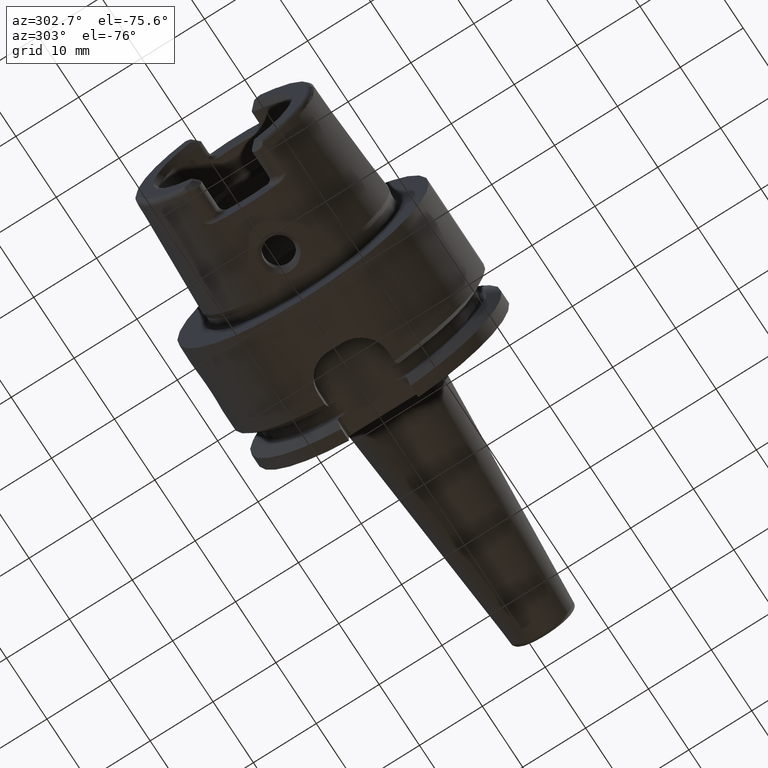
[diagram: clean part render]
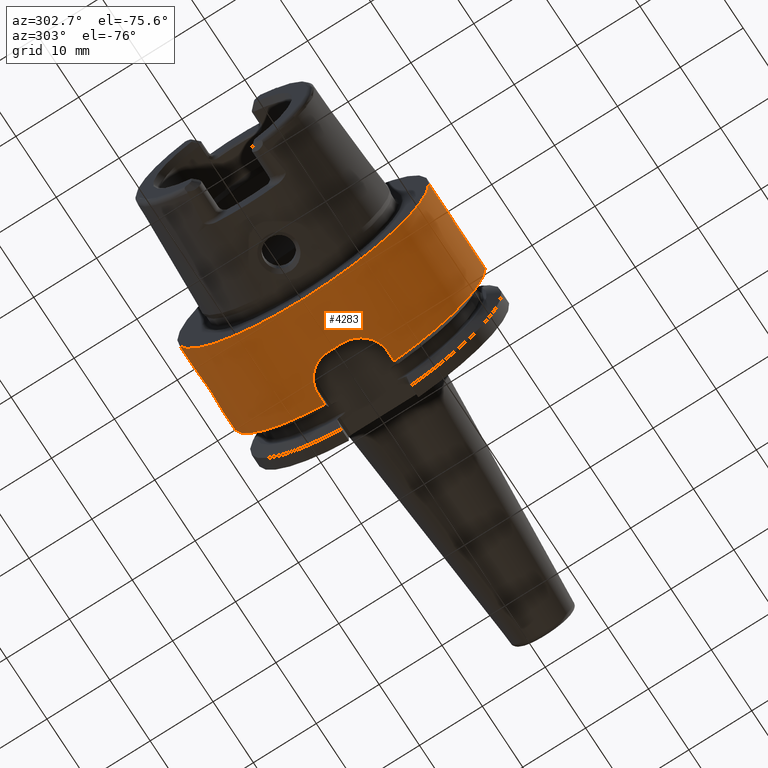
[diagram: same view with one face highlighted and labeled with its STEP entity id]
A machine part, auxiliary view. The second image highlights one B-rep face of the part: STEP entity #4283.
In plain terms, the highlighted cylindrical surface (partial cylindrical patch) has radius 20 mm, axis along (1, 0, 0).
Its self-contained STEP definition (entity closure, byte-faithful):
#853=CARTESIAN_POINT('',(-1.065814103640E-14,0.E0,0.E0));
#854=DIRECTION('',(-1.E0,0.E0,0.E0));
#855=DIRECTION('',(0.E0,1.E0,0.E0));
#856=AXIS2_PLACEMENT_3D('',#853,#854,#855);
#868=CARTESIAN_POINT('',(1.2E1,2.E1,0.E0));
#975=CARTESIAN_POINT('',(2.E0,2.E1,0.E0));
#1039=CARTESIAN_POINT('',(7.E0,1.936491673104E1,-5.E0));
#1040=CARTESIAN_POINT('',(7.277269205720E0,1.936491673104E1,-5.E0));
#1041=CARTESIAN_POINT('',(7.817065062970E0,1.937682316948E1,-4.954174733782E0));
#1042=CARTESIAN_POINT('',(8.583101313273E0,1.942478940204E1,-4.764319170226E0));
#1043=CARTESIAN_POINT('',(9.303947795154E0,1.949746008253E1,-4.460164029726E0));
#1044=CARTESIAN_POINT('',(9.964543066702E0,1.958721708415E1,-4.051503127372E0));
#1045=CARTESIAN_POINT('',(1.056239562523E1,1.968731976873E1,-3.537987227676E0));
#1046=CARTESIAN_POINT('',(1.107349740424E1,1.978701078087E1,-2.935069864087E0));
#1047=CARTESIAN_POINT('',(1.148330640224E1,1.987613861185E1,-2.259675346177E0));
#1048=CARTESIAN_POINT('',(1.178037844883E1,1.994579806335E1,-1.533678372167E0));
#1049=CARTESIAN_POINT('',(1.196005250753E1,1.998995644002E1,
-7.733833777005E-1));
#1050=CARTESIAN_POINT('',(1.2E1,2.E1,-2.596655130622E-1));
#1051=CARTESIAN_POINT('',(1.2E1,2.E1,0.E0));
#1053=CARTESIAN_POINT('',(2.E0,2.E1,0.E0));
#1054=CARTESIAN_POINT('',(2.E0,2.E1,-2.596442736296E-1));
#1055=CARTESIAN_POINT('',(2.039938460865E0,1.998995868639E1,
-7.733487736613E-1));
#1056=CARTESIAN_POINT('',(2.219644608543E0,1.994579231530E1,-1.533776588829E0));
#1057=CARTESIAN_POINT('',(2.516784929283E0,1.987611769093E1,-2.259860863195E0));
#1058=CARTESIAN_POINT('',(2.926599492818E0,1.978699119353E1,-2.935191913340E0));
#1059=CARTESIAN_POINT('',(3.437550815287E0,1.968733182713E1,-3.537903826514E0));
#1060=CARTESIAN_POINT('',(4.034954836188E0,1.958730007145E1,-4.051090857274E0));
#1061=CARTESIAN_POINT('',(4.695054124363E0,1.949757757763E1,-4.459655379746E0));
#1062=CARTESIAN_POINT('',(5.416287811861E0,1.942483710209E1,-4.764129424464E0));
#1063=CARTESIAN_POINT('',(6.182230863981E0,1.937685113542E1,-4.954065552338E0));
#1064=CARTESIAN_POINT('',(6.722458781987E0,1.936491673104E1,-5.E0));
#1065=CARTESIAN_POINT('',(7.E0,1.936491673104E1,-5.E0));
#1067=DIRECTION('',(-1.E0,0.E0,0.E0));
#1068=VECTOR('',#1067,2.E0);
#1069=CARTESIAN_POINT('',(2.E0,2.E1,0.E0));
#1070=LINE('',#1069,#1068);
#1071=DIRECTION('',(-1.E0,0.E0,0.E0));
#1072=VECTOR('',#1071,1.396484030111E1);
#1073=CARTESIAN_POINT('',(1.396484030111E1,-2.E1,0.E0));
#1074=LINE('',#1073,#1072);
#1075=CARTESIAN_POINT('',(1.396484030111E1,0.E0,0.E0));
#1076=DIRECTION('',(1.E0,0.E0,0.E0));
#1077=DIRECTION('',(0.E0,-1.E0,0.E0));
#1078=AXIS2_PLACEMENT_3D('',#1075,#1076,#1077);
#1080=DIRECTION('',(1.E0,0.E0,0.E0));
#1081=VECTOR('',#1080,1.514840301107E0);
#1082=CARTESIAN_POINT('',(1.245E1,-5.5175E0,-1.922387041545E1));
#1083=LINE('',#1082,#1081);
#1084=CARTESIAN_POINT('',(7.95E0,-1.0175E0,-1.997410057424E1));
#1085=CARTESIAN_POINT('',(7.95E0,-1.234200169925E0,-1.996306165802E1));
#1086=CARTESIAN_POINT('',(7.980978032036E0,-1.662443201906E0,
-1.993421578497E1));
#1087=CARTESIAN_POINT('',(8.118783411897E0,-2.294203972142E0,
-1.987126009241E1));
#1088=CARTESIAN_POINT('',(8.345217742881E0,-2.898490238473E0,
-1.979179301189E1));
#1089=CARTESIAN_POINT('',(8.653097213357E0,-3.461060073079E0,
-1.970079639018E1));
#1090=CARTESIAN_POINT('',(9.039074969874E0,-3.975938826797E0,
-1.960289255904E1));
#1091=CARTESIAN_POINT('',(9.490975556199E0,-4.427897980779E0,
-1.950526296599E1));
#1092=CARTESIAN_POINT('',(1.000544064965E1,-4.813741478826E0,
-1.941315469630E1));
#1093=CARTESIAN_POINT('',(1.056793417169E1,-5.121811396186E0,
-1.933370885218E1));
#1094=CARTESIAN_POINT('',(1.117281866157E1,-5.348613360037E0,
-1.927184437973E1));
#1095=CARTESIAN_POINT('',(1.180508501483E1,-5.486534130531E0,
-1.923279751649E1));
#1096=CARTESIAN_POINT('',(1.223327222024E1,-5.5175E0,-1.922387041545E1));
#1097=CARTESIAN_POINT('',(1.245E1,-5.5175E0,-1.922387041545E1));
#1099=CARTESIAN_POINT('',(7.95E0,0.E0,0.E0));
#1100=DIRECTION('',(1.E0,0.E0,0.E0));
#1101=DIRECTION('',(0.E0,-5.0875E-2,-9.987050287122E-1));
#1102=AXIS2_PLACEMENT_3D('',#1099,#1100,#1101);
#1104=CARTESIAN_POINT('',(1.245E1,5.5175E0,-1.922387041545E1));
#1105=CARTESIAN_POINT('',(1.223341430969E1,5.5175E0,-1.922387041545E1));
#1106=CARTESIAN_POINT('',(1.180538912468E1,5.486588502067E0,-1.923278201186E1));
#1107=CARTESIAN_POINT('',(1.117264032182E1,5.348581787341E0,-1.927185350147E1));
#1108=CARTESIAN_POINT('',(1.056762579998E1,5.121671721318E0,-1.933374642026E1));
#1109=CARTESIAN_POINT('',(1.000525446433E1,4.813599240175E0,-1.941318881122E1));
#1110=CARTESIAN_POINT('',(9.491325502212E0,4.428153732482E0,-1.950520091963E1));
#1111=CARTESIAN_POINT('',(9.039824566031E0,3.976760754431E0,-1.960272106696E1));
#1112=CARTESIAN_POINT('',(8.653950710197E0,3.462361507909E0,-1.970056423324E1));
#1113=CARTESIAN_POINT('',(8.345849423145E0,2.899909652134E0,-1.979158750600E1));
#1114=CARTESIAN_POINT('',(8.119027792552E0,2.295134371498E0,-1.987115833270E1));
#1115=CARTESIAN_POINT('',(7.981025615209E0,1.662921580786E0,-1.993418062323E1));
#1116=CARTESIAN_POINT('',(7.95E0,1.234359978913E0,-1.996305351719E1));
#1117=CARTESIAN_POINT('',(7.95E0,1.0175E0,-1.997410057424E1));
#1119=DIRECTION('',(1.E0,0.E0,0.E0));
#1120=VECTOR('',#1119,1.514840301107E0);
#1121=CARTESIAN_POINT('',(1.245E1,5.5175E0,-1.922387041545E1));
#1122=LINE('',#1121,#1120);
#1123=CARTESIAN_POINT('',(1.396484030111E1,0.E0,0.E0));
#1124=DIRECTION('',(1.E0,0.E0,0.E0));
#1125=DIRECTION('',(0.E0,2.75875E-1,-9.611935207725E-1));
#1126=AXIS2_PLACEMENT_3D('',#1123,#1124,#1125);
#1128=DIRECTION('',(-1.E0,0.E0,0.E0));
#1129=VECTOR('',#1128,1.964840301107E0);
#1130=CARTESIAN_POINT('',(1.396484030111E1,2.E1,0.E0));
#1131=LINE('',#1130,#1129);
#1376=CARTESIAN_POINT('',(1.396484030111E1,5.5175E0,-1.922387041545E1));
#1824=CARTESIAN_POINT('',(1.396484030111E1,-5.5175E0,-1.922387041545E1));
#2870=VERTEX_POINT('',#1376);
#2880=VERTEX_POINT('',#1824);
#2982=CARTESIAN_POINT('',(1.245E1,-5.5175E0,-1.922387041545E1));
#2983=VERTEX_POINT('',#2982);
#2984=CARTESIAN_POINT('',(7.95E0,-1.0175E0,-1.997410057424E1));
#2985=VERTEX_POINT('',#2984);
#2986=CARTESIAN_POINT('',(7.95E0,1.0175E0,-1.997410057424E1));
#2987=VERTEX_POINT('',#2986);
#2988=CARTESIAN_POINT('',(1.245E1,5.5175E0,-1.922387041545E1));
#2989=VERTEX_POINT('',#2988);
#3028=CARTESIAN_POINT('',(-1.065814103640E-14,2.E1,0.E0));
#3029=CARTESIAN_POINT('',(-1.065814103640E-14,-2.E1,0.E0));
#3030=VERTEX_POINT('',#3028);
#3031=VERTEX_POINT('',#3029);
#3032=CARTESIAN_POINT('',(1.396484030111E1,2.E1,0.E0));
#3033=VERTEX_POINT('',#3032);
#3034=CARTESIAN_POINT('',(1.396484030111E1,-2.E1,0.E0));
#3035=VERTEX_POINT('',#3034);
#3130=CARTESIAN_POINT('',(7.E0,1.936491673104E1,-5.E0));
#3131=VERTEX_POINT('',#3130);
#3132=VERTEX_POINT('',#868);
#3133=VERTEX_POINT('',#975);
#4256=CARTESIAN_POINT('',(-2.18925E1,0.E0,0.E0));
#4257=DIRECTION('',(1.E0,0.E0,0.E0));
#4258=DIRECTION('',(0.E0,-1.E0,0.E0));
#4259=AXIS2_PLACEMENT_3D('',#4256,#4257,#4258);
#4260=CYLINDRICAL_SURFACE('',#4259,2.E1);
#4261=ORIENTED_EDGE('',*,*,#4187,.F.);
#4262=ORIENTED_EDGE('',*,*,#4200,.F.);
#4263=ORIENTED_EDGE('',*,*,#4169,.T.);
#4264=ORIENTED_EDGE('',*,*,#4128,.T.);
#4265=ORIENTED_EDGE('',*,*,#4166,.F.);
#4267=ORIENTED_EDGE('',*,*,#4266,.T.);
#4269=ORIENTED_EDGE('',*,*,#4268,.F.);
#4271=ORIENTED_EDGE('',*,*,#4270,.F.);
#4273=ORIENTED_EDGE('',*,*,#4272,.T.);
#4275=ORIENTED_EDGE('',*,*,#4274,.F.);
#4277=ORIENTED_EDGE('',*,*,#4276,.T.);
#4279=ORIENTED_EDGE('',*,*,#4278,.T.);
#4280=ORIENTED_EDGE('',*,*,#4144,.T.);
#4281=EDGE_LOOP('',(#4261,#4262,#4263,#4264,#4265,#4267,#4269,#4271,#4273,#4275,
#4277,#4279,#4280));
#4282=FACE_OUTER_BOUND('',#4281,.F.);
#4283=ADVANCED_FACE('',(#4282),#4260,.T.);
#857=CIRCLE('',#856,2.E1);
#1052=B_SPLINE_CURVE_WITH_KNOTS('',3,(#1039,#1040,#1041,#1042,#1043,#1044,#1045,
#1046,#1047,#1048,#1049,#1050,#1051),.UNSPECIFIED.,.F.,.F.,(4,1,1,1,1,1,1,1,1,1,
4),(0.E0,1.E-1,2.E-1,3.E-1,4.E-1,5.E-1,6.E-1,7.E-1,8.E-1,9.E-1,1.E0),
.UNSPECIFIED.);
#1066=B_SPLINE_CURVE_WITH_KNOTS('',3,(#1053,#1054,#1055,#1056,#1057,#1058,#1059,
#1060,#1061,#1062,#1063,#1064,#1065),.UNSPECIFIED.,.F.,.F.,(4,1,1,1,1,1,1,1,1,1,
4),(0.E0,1.E-1,2.E-1,3.E-1,4.E-1,5.E-1,6.E-1,7.E-1,8.E-1,9.E-1,1.E0),
.UNSPECIFIED.);
#1079=CIRCLE('',#1078,2.E1);
#1098=B_SPLINE_CURVE_WITH_KNOTS('',3,(#1084,#1085,#1086,#1087,#1088,#1089,#1090,
#1091,#1092,#1093,#1094,#1095,#1096,#1097),.UNSPECIFIED.,.F.,.F.,(4,1,1,1,1,1,1,
1,1,1,1,4),(0.E0,9.090909090909E-2,1.818181818182E-1,2.727272727273E-1,
3.636363636364E-1,4.545454545455E-1,5.454545454545E-1,6.363636363636E-1,
7.272727272727E-1,8.181818181818E-1,9.090909090909E-1,1.E0),.UNSPECIFIED.);
#1103=CIRCLE('',#1102,2.E1);
#1118=B_SPLINE_CURVE_WITH_KNOTS('',3,(#1104,#1105,#1106,#1107,#1108,#1109,#1110,
#1111,#1112,#1113,#1114,#1115,#1116,#1117),.UNSPECIFIED.,.F.,.F.,(4,1,1,1,1,1,1,
1,1,1,1,4),(0.E0,9.090909090909E-2,1.818181818182E-1,2.727272727273E-1,
3.636363636364E-1,4.545454545455E-1,5.454545454545E-1,6.363636363636E-1,
7.272727272727E-1,8.181818181818E-1,9.090909090909E-1,1.E0),.UNSPECIFIED.);
#1127=CIRCLE('',#1126,2.E1);
#4128=EDGE_CURVE('',#3030,#3031,#857,.T.);
#4144=EDGE_CURVE('',#3033,#3132,#1131,.T.);
#4166=EDGE_CURVE('',#3035,#3031,#1074,.T.);
#4169=EDGE_CURVE('',#3133,#3030,#1070,.T.);
#4187=EDGE_CURVE('',#3131,#3132,#1052,.T.);
#4200=EDGE_CURVE('',#3133,#3131,#1066,.T.);
#4266=EDGE_CURVE('',#3035,#2880,#1079,.T.);
#4268=EDGE_CURVE('',#2983,#2880,#1083,.T.);
#4270=EDGE_CURVE('',#2985,#2983,#1098,.T.);
#4272=EDGE_CURVE('',#2985,#2987,#1103,.T.);
#4274=EDGE_CURVE('',#2989,#2987,#1118,.T.);
#4276=EDGE_CURVE('',#2989,#2870,#1122,.T.);
#4278=EDGE_CURVE('',#2870,#3033,#1127,.T.);